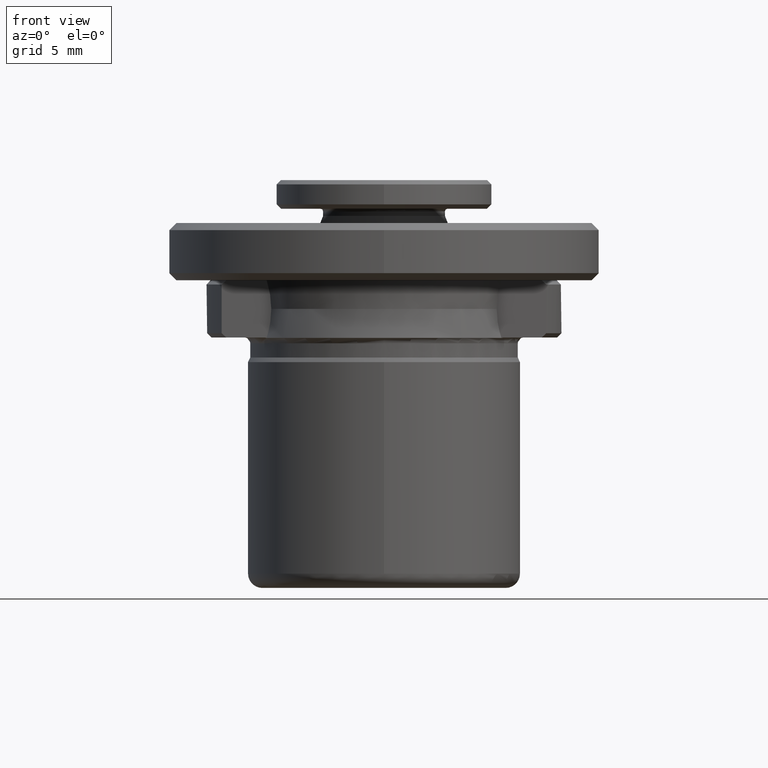
[diagram: clean part render]
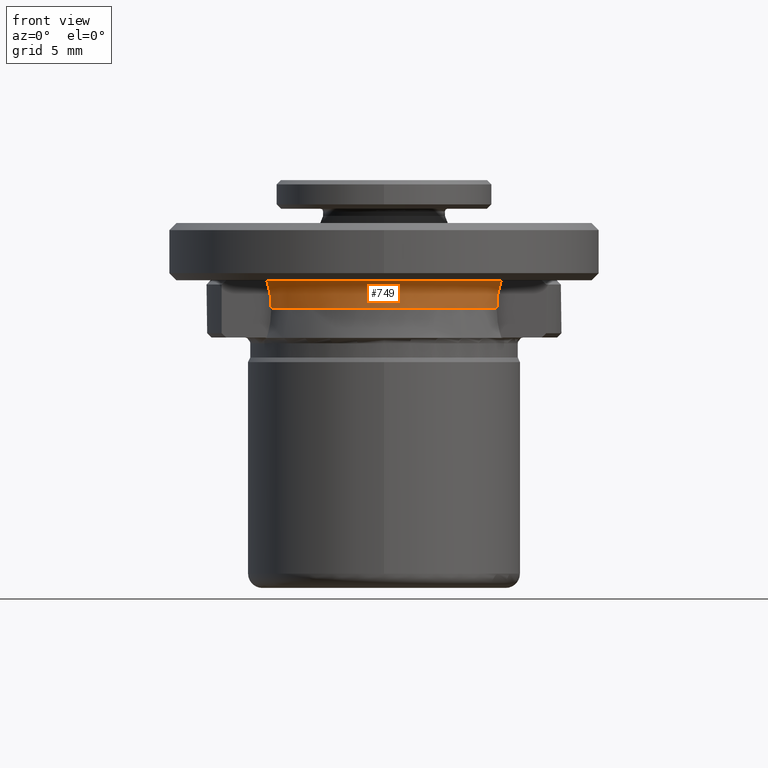
[diagram: same view with one face highlighted and labeled with its STEP entity id]
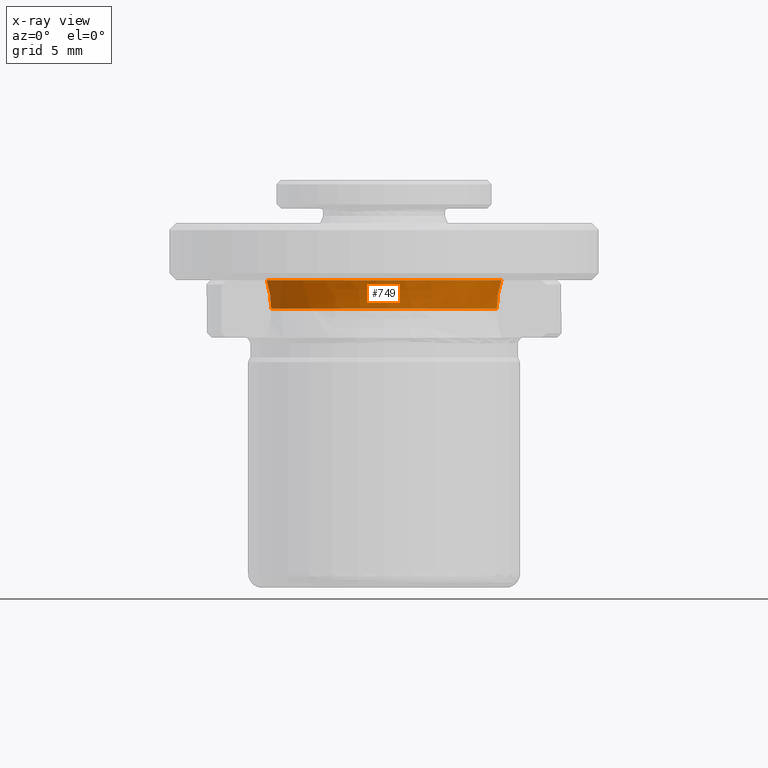
[diagram: x-ray of the same camera — body ghosted, the highlighted face saturated]
A machine part, front view. The second image highlights one B-rep face of the part: STEP entity #749.
The next image is the same camera in x-ray: the body ghosted, the highlighted face saturated — about 0% of this face is hidden behind the body in this view.
In plain terms, the highlighted face is a freeform B-spline surface patch.
Its self-contained STEP definition (entity closure, byte-faithful):
#86 = CARTESIAN_POINT ( 'NONE',  ( -8.196975813224247200, -5.000000000059219300, 8.750000000000000000 ) ) ;
#109 =( BOUNDED_SURFACE ( )  B_SPLINE_SURFACE ( 3, 3, ( 
 ( #1853, #1845, #1189, #145 ),
 ( #1351, #315, #1522, #481 ),
 ( #1690, #666, #1862, #848 ),
 ( #2031, #1025, #2199, #1198 ) ),
 .UNSPECIFIED., .F., .F., .F. ) 
 B_SPLINE_SURFACE_WITH_KNOTS ( ( 4, 4 ),
 ( 4, 4 ),
 ( 0.0000000000000000000, 1.000000000000000000 ),
 ( 0.0000000000000000000, 1.000000000000000000 ),
 .UNSPECIFIED. ) 
 GEOMETRIC_REPRESENTATION_ITEM ( )  RATIONAL_B_SPLINE_SURFACE ( (
 ( 1.000000000000000000, 0.6734850439786470600, 0.6734850439786470600, 1.000000000000000000),
 ( 0.9816814431953340100, 0.6611477699434310500, 0.6611477699434310500, 0.9816814431953340100),
 ( 0.9816814431953340100, 0.6611477699434310500, 0.6611477699434310500, 0.9816814431953340100),
 ( 1.000000000000000000, 0.6734850439786470600, 0.6734850439786470600, 1.000000000000000000) ) ) 
 REPRESENTATION_ITEM ( '' )  SURFACE ( )  );
#126 = CARTESIAN_POINT ( 'NONE',  ( 3.802041327538604200, -11.41995861482380700, 6.749999999011319800 ) ) ;
#145 = CARTESIAN_POINT ( 'NONE',  ( 8.056392546000001400, -4.779540785000001800, 6.001249375000001300 ) ) ;
#170 = VERTEX_POINT ( 'NONE', #86 ) ;
#220 = CARTESIAN_POINT ( 'NONE',  ( 7.877112416672511100, -4.999999997048597300, 6.749999999319589600 ) ) ;
#257 = CARTESIAN_POINT ( 'NONE',  ( 8.196975813404300500, -5.000000000000000000, 8.750000000444099900 ) ) ;
#274 = EDGE_CURVE ( 'NONE', #170, #2058, #1125, .T. ) ;
#315 = CARTESIAN_POINT ( 'NONE',  ( -3.937024453000000300, -11.49113273000000000, 7.181098635999998900 ) ) ;
#426 = EDGE_CURVE ( 'NONE', #2058, #1474, #1065, .T. ) ;
#464 = CARTESIAN_POINT ( 'NONE',  ( -7.877112416672512800, -4.999999997048596400, 6.749999999319591400 ) ) ;
#481 = CARTESIAN_POINT ( 'NONE',  ( 7.954581259999998500, -4.719140153000001400, 7.181098635999999800 ) ) ;
#493 = ORIENTED_EDGE ( 'NONE', *, *, #274, .F. ) ;
#509 = CARTESIAN_POINT ( 'NONE',  ( -8.196975813224247200, -5.000000000059219300, 8.750000000000000000 ) ) ;
#642 = CARTESIAN_POINT ( 'NONE',  ( -7.877112415001547200, -5.000000000000002700, 7.429349860856746100 ) ) ;
#661 = CARTESIAN_POINT ( 'NONE',  ( 8.196975813404300500, -5.000000000000000000, 8.750000000444099900 ) ) ;
#666 = CARTESIAN_POINT ( 'NONE',  ( -4.004941237999998900, -11.68936385900000000, 8.356088229000002700 ) ) ;
#720 = EDGE_CURVE ( 'NONE', #832, #170, #1808, .T. ) ;
#749 = ADVANCED_FACE ( 'NONE', ( #2161 ), #109, .F. ) ;
#780 = CARTESIAN_POINT ( 'NONE',  ( 4.015183221997171300, -11.85561054524241900, 8.750000000000001800 ) ) ;
#826 = CARTESIAN_POINT ( 'NONE',  ( -7.877112416672512800, -4.999999997048596400, 6.749999999319591400 ) ) ;
#832 = VERTEX_POINT ( 'NONE', #1721 ) ;
#848 = CARTESIAN_POINT ( 'NONE',  ( 8.091804077999999100, -4.800549054000000200, 8.356088229000002700 ) ) ;
#905 = CARTESIAN_POINT ( 'NONE',  ( 7.987554438067028300, -5.000000000000000000, 8.103832764885185100 ) ) ;
#977 = CARTESIAN_POINT ( 'NONE',  ( -4.015183221997213000, -11.85561054524239600, 8.750000000000000000 ) ) ;
#1006 = CARTESIAN_POINT ( 'NONE',  ( -7.987555906389316000, -5.000000000000000900, 8.103837295376664000 ) ) ;
#1025 = CARTESIAN_POINT ( 'NONE',  ( -4.187432670999998900, -12.22200806699999900, 9.461645811000002100 ) ) ;
#1065 = B_SPLINE_CURVE_WITH_KNOTS ( 'NONE', 3,
 ( #661, #905, #1438, #220 ),
 .UNSPECIFIED., .F., .F.,
 ( 4, 4 ),
 ( 4.215344750152631900E-013, 0.002031991266945169900 ),
 .UNSPECIFIED. ) ;
#1072 = ORIENTED_EDGE ( 'NONE', *, *, #426, .F. ) ;
#1125 =( BOUNDED_CURVE ( )  B_SPLINE_CURVE ( 3, ( #509, #977, #780, #1363 ),
 .UNSPECIFIED., .F., .F. ) 
 B_SPLINE_CURVE_WITH_KNOTS ( ( 4, 4 ),
 ( 0.0000000000000000000, 0.01955758531398497200 ),
 .UNSPECIFIED. ) 
 CURVE ( )  GEOMETRIC_REPRESENTATION_ITEM ( )  RATIONAL_B_SPLINE_CURVE ( ( 0.9839124906715949200, 0.6695507562529831000, 0.6695507562529824400, 0.9839124906715930300 ) ) 
 REPRESENTATION_ITEM ( '' )  );
#1189 = CARTESIAN_POINT ( 'NONE',  ( 3.987414726000000400, -11.63820860699999700, 6.001249375000002200 ) ) ;
#1198 = CARTESIAN_POINT ( 'NONE',  ( 8.460519829000002500, -5.019293605000001400, 9.461645811000002100 ) ) ;
#1209 = CARTESIAN_POINT ( 'NONE',  ( 7.877112416672511100, -4.999999997048597300, 6.749999999319589600 ) ) ;
#1293 =( BOUNDED_CURVE ( )  B_SPLINE_CURVE ( 3, ( #1335, #126, #1502, #464 ),
 .UNSPECIFIED., .F., .F. ) 
 B_SPLINE_CURVE_WITH_KNOTS ( ( 4, 4 ),
 ( 0.0000000000000000000, 1.000000000000000000 ),
 .UNSPECIFIED. ) 
 CURVE ( )  GEOMETRIC_REPRESENTATION_ITEM ( )  RATIONAL_B_SPLINE_CURVE ( ( 0.9738585525977352400, 0.6725504043378097700, 0.6725504043378099900, 0.9738585525977354600 ) ) 
 REPRESENTATION_ITEM ( '' )  );
#1335 = CARTESIAN_POINT ( 'NONE',  ( 7.877112416672511100, -4.999999997048597300, 6.749999999319589600 ) ) ;
#1351 = CARTESIAN_POINT ( 'NONE',  ( -7.954581259999998500, -4.719140153000001400, 7.181098635999999800 ) ) ;
#1363 = CARTESIAN_POINT ( 'NONE',  ( 8.196975813404298700, -5.000000000000000000, 8.750000000444099900 ) ) ;
#1419 = ORIENTED_EDGE ( 'NONE', *, *, #720, .F. ) ;
#1438 = CARTESIAN_POINT ( 'NONE',  ( 7.877112415001547200, -5.000000000000000900, 7.429352586306534600 ) ) ;
#1474 = VERTEX_POINT ( 'NONE', #1209 ) ;
#1502 = CARTESIAN_POINT ( 'NONE',  ( -3.802041327538610900, -11.41995861482380400, 6.749999999011321500 ) ) ;
#1522 = CARTESIAN_POINT ( 'NONE',  ( 3.937024453000000300, -11.49113273000000000, 7.181098635999998900 ) ) ;
#1588 = EDGE_CURVE ( 'NONE', #1474, #832, #1293, .T. ) ;
#1690 = CARTESIAN_POINT ( 'NONE',  ( -8.091804077999999100, -4.800549054000000200, 8.356088229000002700 ) ) ;
#1721 = CARTESIAN_POINT ( 'NONE',  ( -7.877112416672512800, -4.999999997048596400, 6.749999999319591400 ) ) ;
#1808 = B_SPLINE_CURVE_WITH_KNOTS ( 'NONE', 3,
 ( #826, #642, #1006, #2177 ),
 .UNSPECIFIED., .F., .F.,
 ( 4, 4 ),
 ( 3.469446951953614200E-018, 0.002031686963425014700 ),
 .UNSPECIFIED. ) ;
#1845 = CARTESIAN_POINT ( 'NONE',  ( -3.987414726000000400, -11.63820860699999700, 6.001249375000002200 ) ) ;
#1853 = CARTESIAN_POINT ( 'NONE',  ( -8.056392546000001400, -4.779540785000001800, 6.001249375000001300 ) ) ;
#1862 = CARTESIAN_POINT ( 'NONE',  ( 4.004941237999998900, -11.68936385900000000, 8.356088229000002700 ) ) ;
#1898 = ORIENTED_EDGE ( 'NONE', *, *, #1588, .F. ) ;
#1978 = EDGE_LOOP ( 'NONE', ( #1898, #1072, #493, #1419 ) ) ;
#2031 = CARTESIAN_POINT ( 'NONE',  ( -8.460519829000002500, -5.019293605000001400, 9.461645811000002100 ) ) ;
#2058 = VERTEX_POINT ( 'NONE', #257 ) ;
#2161 = FACE_OUTER_BOUND ( 'NONE', #1978, .T. ) ;
#2177 = CARTESIAN_POINT ( 'NONE',  ( -8.196975813224247200, -5.000000000059219300, 8.750000000000000000 ) ) ;
#2199 = CARTESIAN_POINT ( 'NONE',  ( 4.187432670999998900, -12.22200806699999900, 9.461645811000002100 ) ) ;